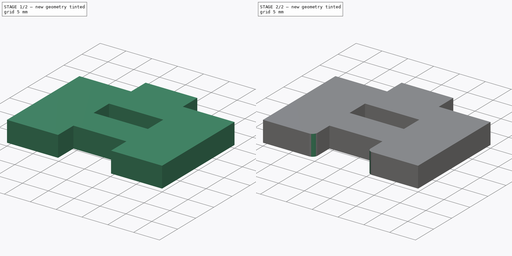
[diagram: build sequence overview — one tinted view per stage of 2, left to right]
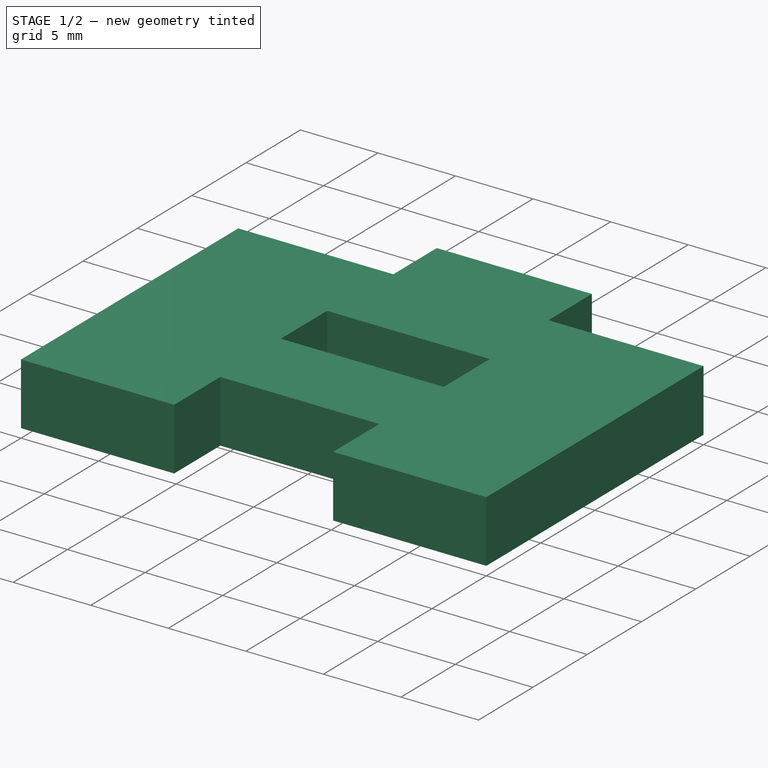
[diagram: stage 1 of 2 — iso view after this stage's code; geometry added in this stage tinted green]
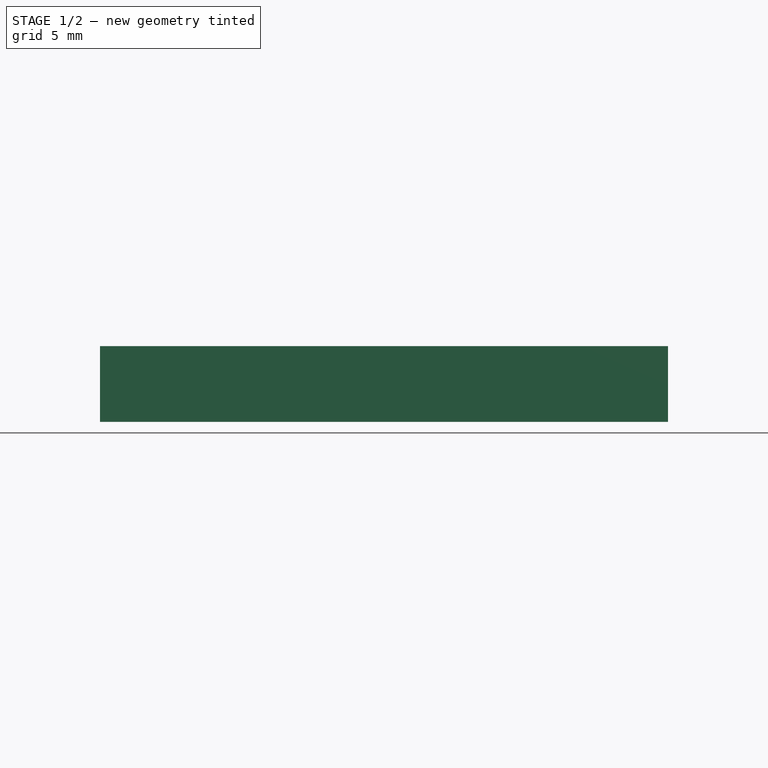
[diagram: stage 1 of 2 — front view after this stage's code; geometry added in this stage tinted green]
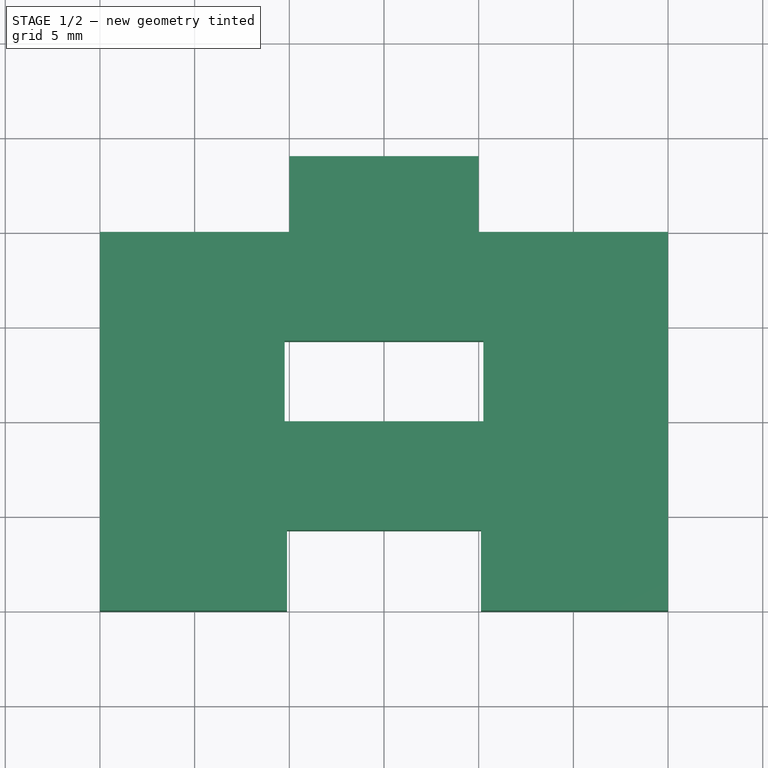
[diagram: stage 1 of 2 — top view after this stage's code; geometry added in this stage tinted green]
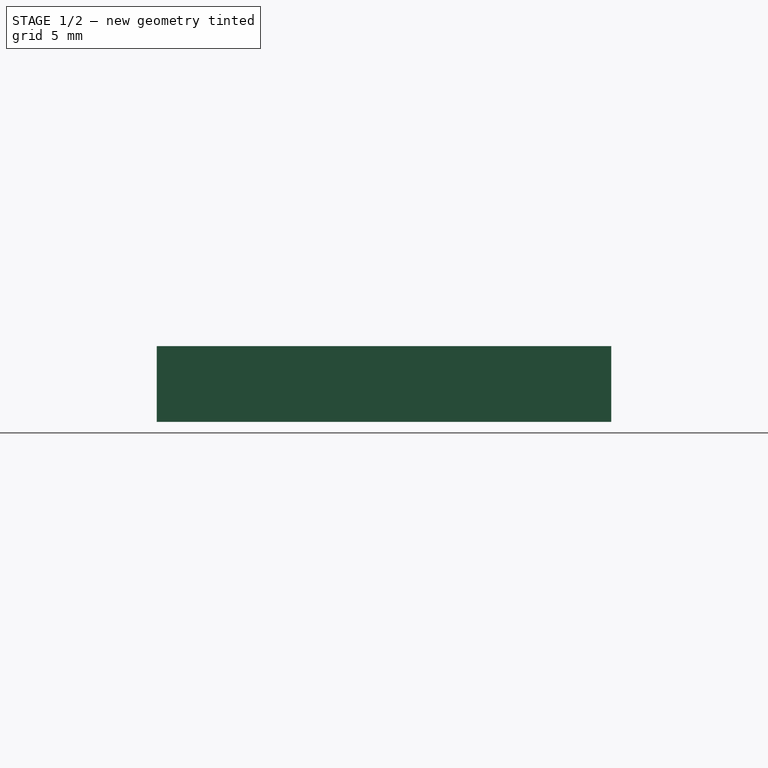
[diagram: stage 1 of 2 — right view after this stage's code; geometry added in this stage tinted green]
FCSTD DOCUMENT  (FreeCAD 0.18R16131 (Git))
Label: NotchSizesTest
License: All rights reserved
LicenseURL: http://en.wikipedia.org/wiki/All_rights_reserved
objects: Sketcher::SketchObject×1, PartDesign::Pad×1, PartDesign::Fillet×1, PartDesign::Body×1, App::Part×1
note: 5 computed .brp shape members not serialized (recipe doc carries the construction recipe); baked Part::Feature solids carry a one-line shape summary decoded from their .brp

FEATURE [Sketcher::SketchObject] Sketch
  MapMode = 5
  Support = -> [XY_Plane001]
  sketch-geometry (16):
    g0: LineSegment StartX=-5.25 StartY=4.25 StartZ=0 EndX=5.25 EndY=4.25 EndZ=0
    g1: LineSegment StartX=5.25 StartY=4.25 StartZ=0 EndX=5.25 EndY=0 EndZ=0
    g2: LineSegment StartX=5.25 StartY=0 StartZ=0 EndX=-5.25 EndY=0 EndZ=0
    g3: LineSegment StartX=-5.25 StartY=0 StartZ=0 EndX=-5.25 EndY=4.25 EndZ=0
    g4: LineSegment StartX=-15 StartY=10 StartZ=0 EndX=-15 EndY=-10 EndZ=0
    g5: LineSegment StartX=15 StartY=-10 StartZ=0 EndX=15 EndY=10 EndZ=0
    g6: LineSegment StartX=-15 StartY=10 StartZ=0 EndX=-5 EndY=10 EndZ=0
    g7: LineSegment StartX=-5 StartY=10 StartZ=0 EndX=-5 EndY=14 EndZ=0
    g8: LineSegment StartX=-5 StartY=14 StartZ=0 EndX=5 EndY=14 EndZ=0
    g9: LineSegment StartX=5 StartY=14 StartZ=0 EndX=5 EndY=10 EndZ=0
    g10: LineSegment StartX=5 StartY=10 StartZ=0 EndX=15 EndY=10 EndZ=0
    g11: LineSegment StartX=-15 StartY=-10 StartZ=0 EndX=-5.125 EndY=-10 EndZ=0
    g12: LineSegment StartX=-5.125 StartY=-10 StartZ=0 EndX=-5.125 EndY=-5.75 EndZ=0
    g13: LineSegment StartX=-5.125 StartY=-5.75 StartZ=0 EndX=5.125 EndY=-5.75 EndZ=0
    g14: LineSegment StartX=5.125 StartY=-5.75 StartZ=0 EndX=5.125 EndY=-10 EndZ=0
    g15: LineSegment StartX=5.125 StartY=-10 StartZ=0 EndX=15 EndY=-10 EndZ=0
  constraints (45):
    c: Coincident(g0,g1)
    c: Coincident(g1,g2)
    c: Coincident(g2,g3)
    c: Coincident(g3,g0)
    c: Horizontal(g0)
    c: Vertical(g1)
    c: Vertical(g3)
    c: Vertical(g5)
    c: Coincident(g6,g4)
    c: Coincident(g7,g6)
    c: Vertical(g7)
    c: Coincident(g8,g7)
    c: Horizontal(g8)
    c: Coincident(g9,g8)
    c: Coincident(g10,g9)
    c: Coincident(g10,g5)
    c: Horizontal(g10)
    c: Coincident(g11,g4)
    c: Coincident(g12,g11)
    c: Coincident(g13,g12)
    c: Horizontal(g13)
    c: Coincident(g14,g13)
    c: Coincident(g15,g14)
    c: Coincident(g15,g5)
    c: Horizontal(g15)
    c: Vertical(g14)
    c: Vertical(g12)
    c: Horizontal(g6)
    c: Vertical(g9)
    c: Equal(g9,g7)
    c: Equal(g12,g14)
    c: Equal(g11,g15)
    c: Equal(g6,g10)
    c: Symmetric(g5,g4,g-2)
    c: Symmetric(g4,g4,g-1)
    c: Distance(g8) = 10
    c: Distance(g6) = 10
    c: Distance(g13) = 10.25
    c: Distance(g7) = 4
    c: Distance(g12) = 4.25
    c: Distance(g4) = 20
    c: PointOnObject(g2,g-1)
    c: Symmetric(g2,g1,g-2)
    c: Distance(g3) = 4.25
    c: Distance(g0) = 10.5
FEATURE [PartDesign::Pad] Pad
  Length = 4
  Length2 = 100
  Profile = -> Sketch
  Type = 0
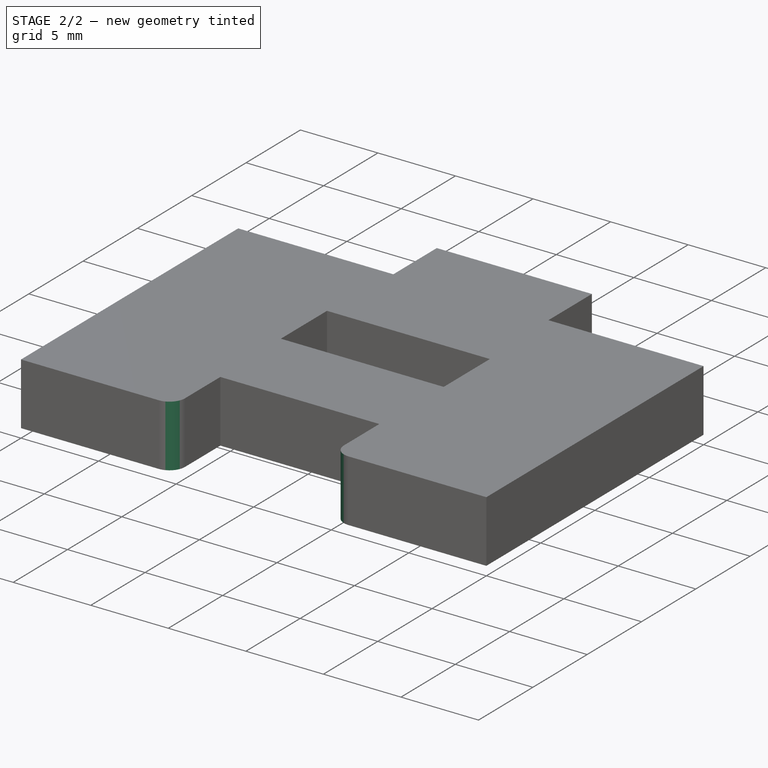
[diagram: stage 2 of 2 — iso view after this stage's code; geometry added in this stage tinted green]
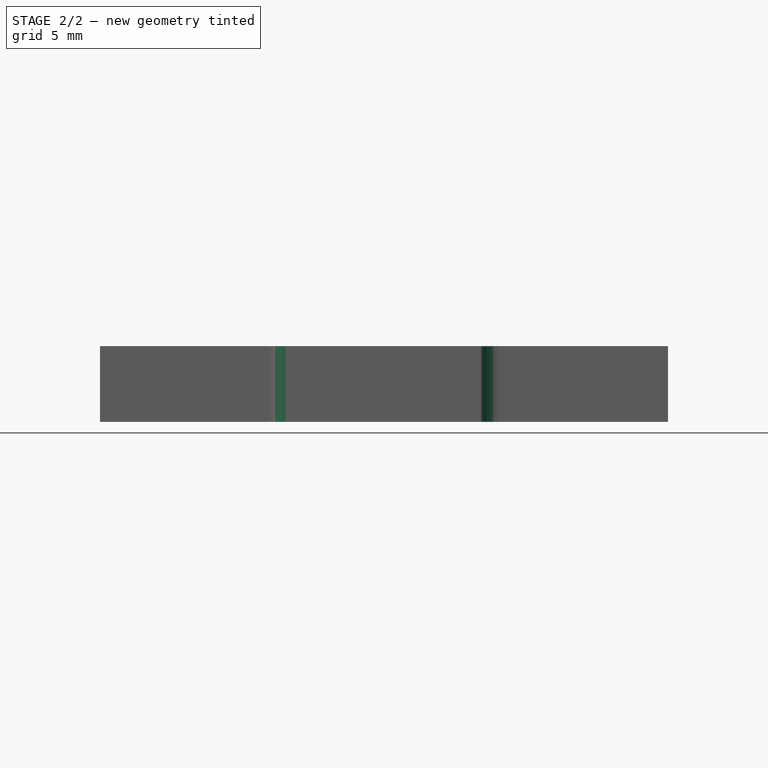
[diagram: stage 2 of 2 — front view after this stage's code; geometry added in this stage tinted green]
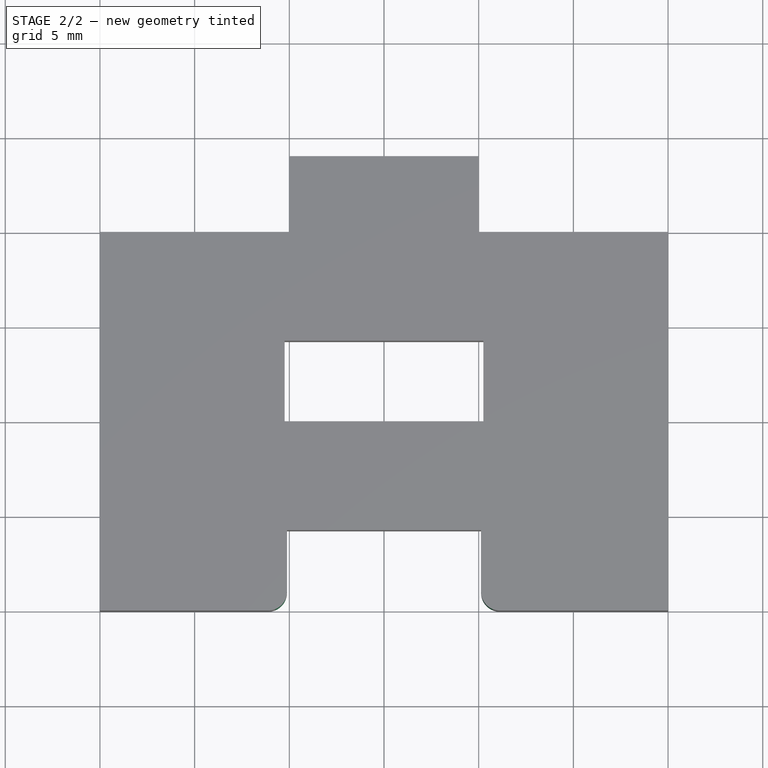
[diagram: stage 2 of 2 — top view after this stage's code; geometry added in this stage tinted green]
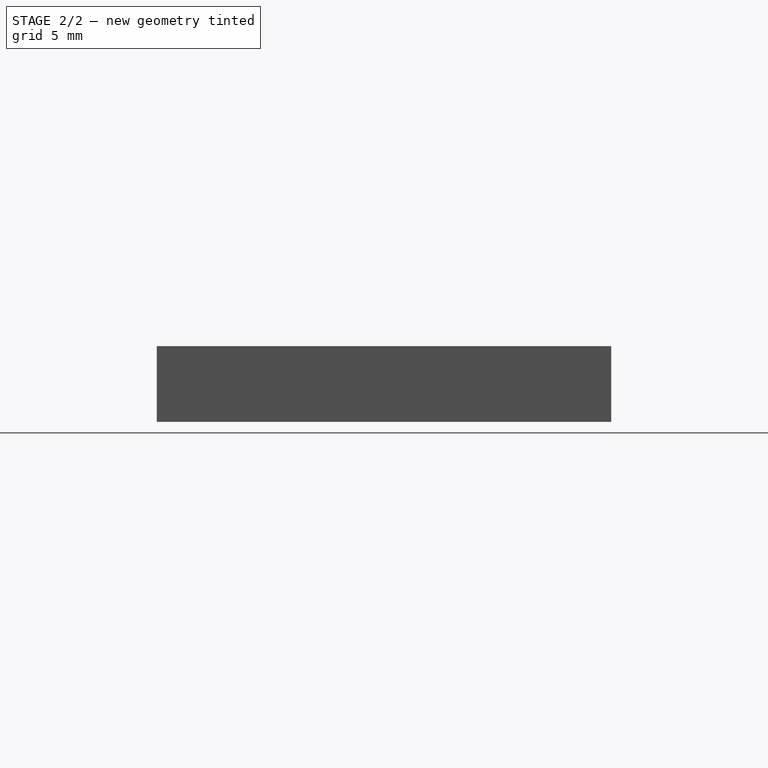
[diagram: stage 2 of 2 — right view after this stage's code; geometry added in this stage tinted green]
FEATURE [PartDesign::Fillet] Fillet
  Base = -> Pad [Edge8,Edge17]
  BaseFeature = -> Pad
  Radius = 1
FEATURE [PartDesign::Body] Body  label="TestBody"
  Group = -> [Sketch,Pad,Fillet]
  Origin = -> Origin001
  Tip = -> Fillet
FEATURE [App::Part] Part  label="TestPart"
  Group = -> [Body]
  Origin = -> Origin
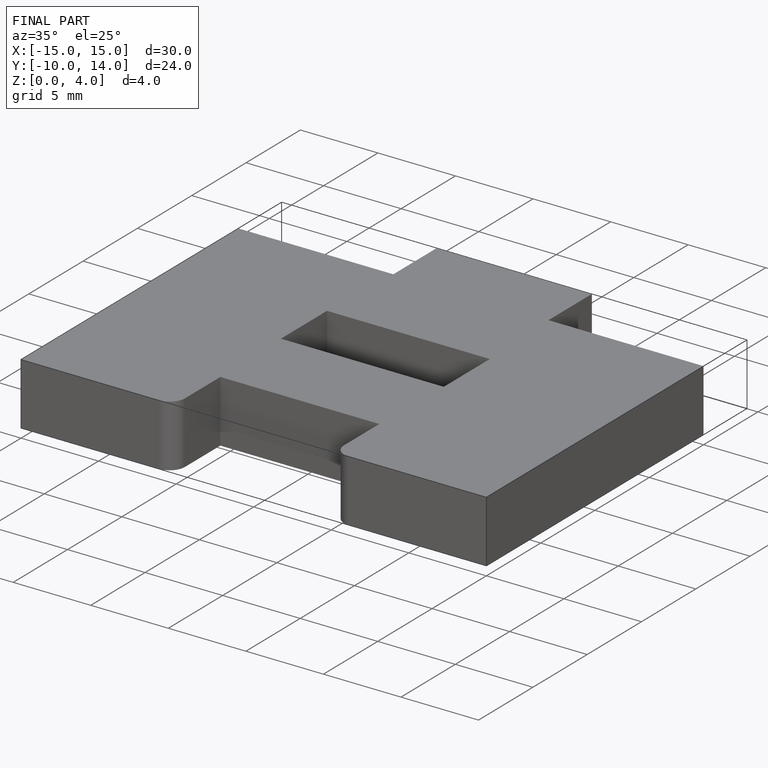
[diagram: finished part — iso view with bounding-box wireframe]
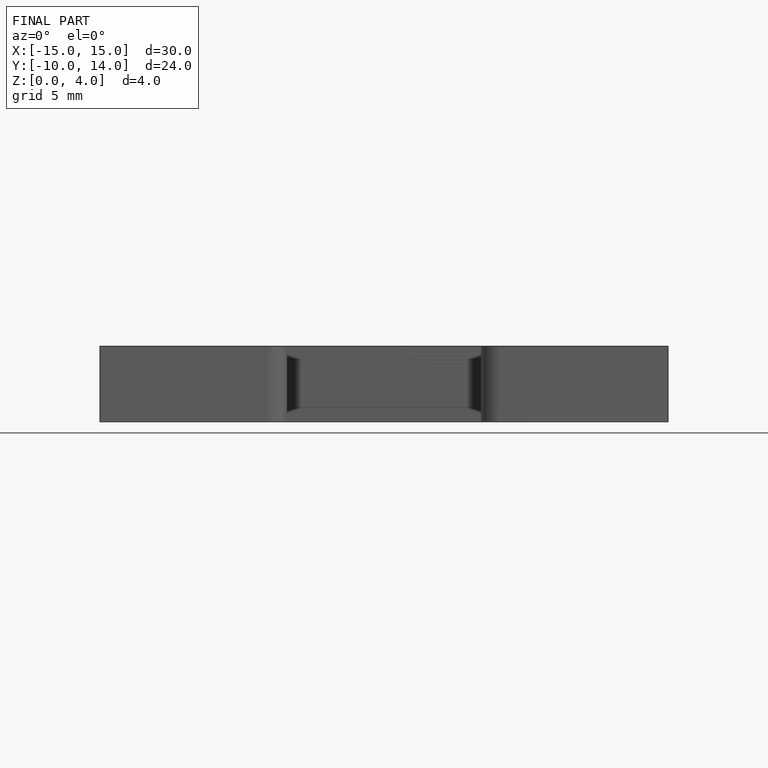
[diagram: finished part — front view with bounding-box wireframe]
